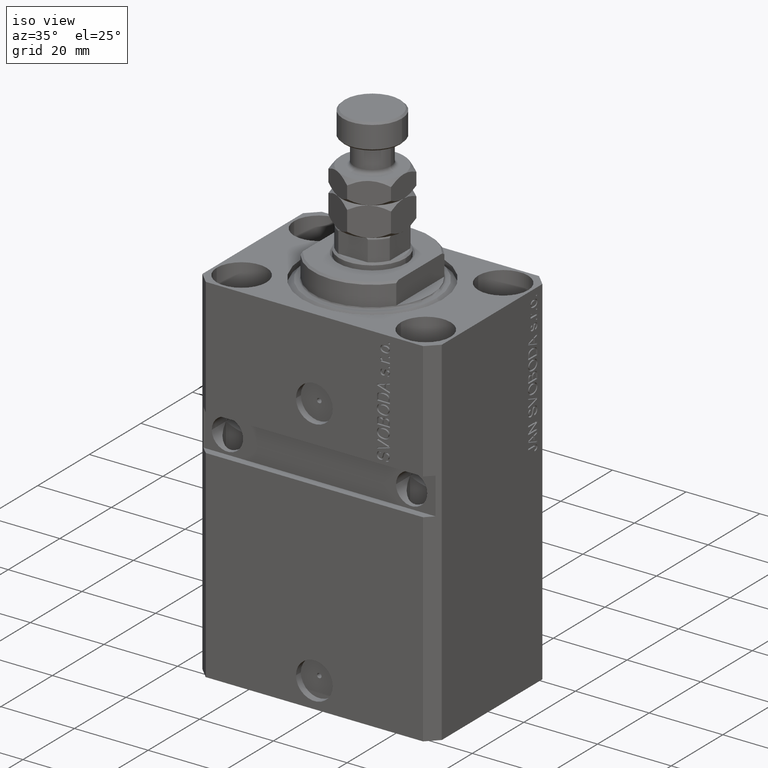
[diagram: clean part render]
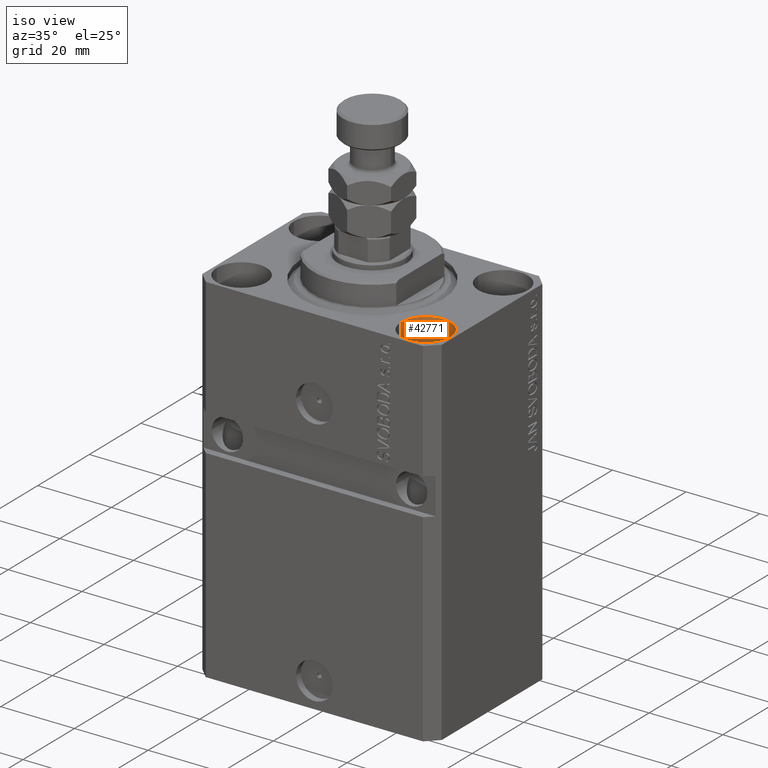
[diagram: same view with one face highlighted and labeled with its STEP entity id]
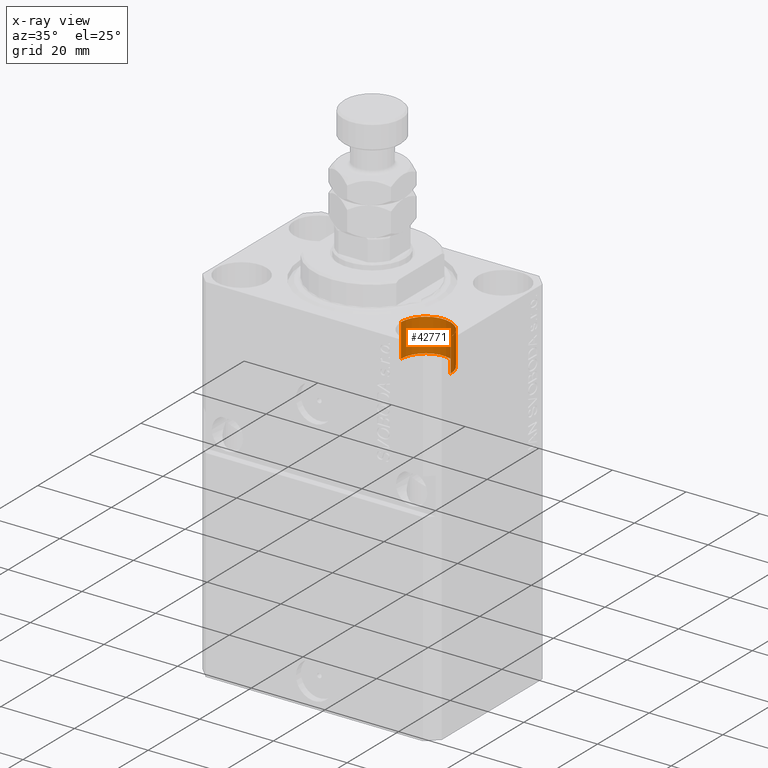
[diagram: x-ray of the same camera — body ghosted, the highlighted face saturated]
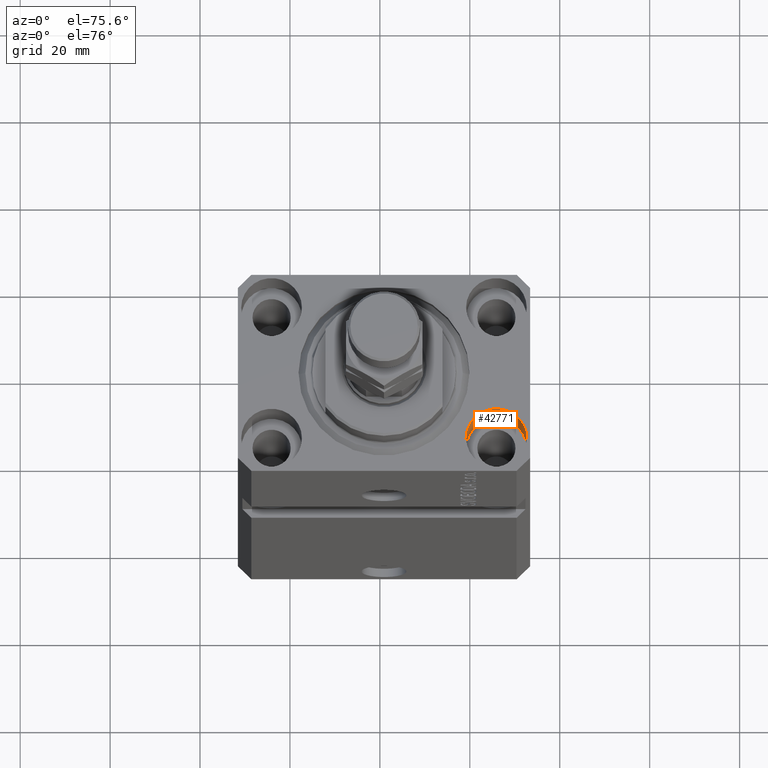
[diagram: same view with one face highlighted and labeled with its STEP entity id]
A machine part, iso view. The second image highlights one B-rep face of the part: STEP entity #42771.
The next image is the same camera in x-ray: the body ghosted, the highlighted face saturated — about 0% of this face is hidden behind the body in this view.
A second angle (auxiliary view) of the same face is appended — the face is thin or edge-on in the first view.
In plain terms, the highlighted cylindrical surface (edge-blend (fillet) strip) has radius 6.75 mm, axis along (0, 0, 1).
Its self-contained STEP definition (entity closure, byte-faithful):
#1214 = ORIENTED_EDGE ( 'NONE', *, *, #22786, .T. ) ;
#1317 = EDGE_LOOP ( 'NONE', ( #12373, #20111, #9183, #1214 ) ) ;
#2191 = EDGE_CURVE ( 'NONE', #39083, #41179, #29558, .T. ) ;
#2697 = DIRECTION ( 'NONE',  ( 0.000000000000000000, 0.000000000000000000, 1.000000000000000000 ) ) ;
#2928 = DIRECTION ( 'NONE',  ( 0.000000000000000000, 0.000000000000000000, 1.000000000000000000 ) ) ;
#5029 = DIRECTION ( 'NONE',  ( -0.000000000000000000, -0.000000000000000000, 1.000000000000000000 ) ) ;
#8154 = AXIS2_PLACEMENT_3D ( 'NONE', #36735, #2928, #28611 ) ;
#9183 = ORIENTED_EDGE ( 'NONE', *, *, #48733, .T. ) ;
#12373 = ORIENTED_EDGE ( 'NONE', *, *, #2191, .F. ) ;
#15458 = CARTESIAN_POINT ( 'NONE',  ( 18.25000000002253842, -15.00000000000000000, -9.000000000000000000 ) ) ;
#16906 = VERTEX_POINT ( 'NONE', #19201 ) ;
#16954 = CARTESIAN_POINT ( 'NONE',  ( 18.25000000002253842, -15.00000000000000000, -9.000000000000000000 ) ) ;
#17546 = DIRECTION ( 'NONE',  ( -0.000000000000000000, -0.000000000000000000, 1.000000000000000000 ) ) ;
#17781 = EDGE_CURVE ( 'NONE', #16906, #39083, #31771, .T. ) ;
#18033 = CARTESIAN_POINT ( 'NONE',  ( 31.74999999997746869, -15.00000000000000000, -9.000000000000000000 ) ) ;
#19201 = CARTESIAN_POINT ( 'NONE',  ( 31.74999999997746869, -15.00000000000000000, -9.000000000000000000 ) ) ;
#19942 = VERTEX_POINT ( 'NONE', #46723 ) ;
#20111 = ORIENTED_EDGE ( 'NONE', *, *, #17781, .F. ) ;
#20569 = CARTESIAN_POINT ( 'NONE',  ( 25.00000000000000355, -15.00000000000000000, -9.000000000000000000 ) ) ;
#21221 = CARTESIAN_POINT ( 'NONE',  ( 18.25000000002253842, -15.00000000000000000, 0.000000000000000000 ) ) ;
#22786 = EDGE_CURVE ( 'NONE', #19942, #41179, #44412, .T. ) ;
#22869 = DIRECTION ( 'NONE',  ( -0.000000000000000000, -0.000000000000000000, 1.000000000000000000 ) ) ;
#23785 = FACE_OUTER_BOUND ( 'NONE', #1317, .T. ) ;
#27817 = AXIS2_PLACEMENT_3D ( 'NONE', #36510, #2697, #43415 ) ;
#28611 = DIRECTION ( 'NONE',  ( 1.000000000000000000, 0.000000000000000000, 0.000000000000000000 ) ) ;
#29558 = LINE ( 'NONE', #15458, #47866 ) ;
#31448 = CYLINDRICAL_SURFACE ( 'NONE', #34706, 6.749999999977465137 ) ;
#31771 = CIRCLE ( 'NONE', #27817, 6.749999999977465137 ) ;
#32371 = LINE ( 'NONE', #18033, #44375 ) ;
#34706 = AXIS2_PLACEMENT_3D ( 'NONE', #20569, #5029, #47655 ) ;
#36510 = CARTESIAN_POINT ( 'NONE',  ( 25.00000000000000355, -15.00000000000000000, -9.000000000000000000 ) ) ;
#36735 = CARTESIAN_POINT ( 'NONE',  ( 25.00000000000000355, -15.00000000000000000, 0.000000000000000000 ) ) ;
#39083 = VERTEX_POINT ( 'NONE', #16954 ) ;
#41179 = VERTEX_POINT ( 'NONE', #21221 ) ;
#42771 = ADVANCED_FACE ( 'NONE', ( #23785 ), #31448, .F. ) ;
#43415 = DIRECTION ( 'NONE',  ( 1.000000000000000000, 0.000000000000000000, 0.000000000000000000 ) ) ;
#44375 = VECTOR ( 'NONE', #17546, 1000.000000000000000 ) ;
#44412 = CIRCLE ( 'NONE', #8154, 6.749999999977465137 ) ;
#46723 = CARTESIAN_POINT ( 'NONE',  ( 31.74999999997746869, -15.00000000000000000, 0.000000000000000000 ) ) ;
#47655 = DIRECTION ( 'NONE',  ( 1.000000000000000000, 0.000000000000000000, 0.000000000000000000 ) ) ;
#47866 = VECTOR ( 'NONE', #22869, 1000.000000000000000 ) ;
#48733 = EDGE_CURVE ( 'NONE', #16906, #19942, #32371, .T. ) ;